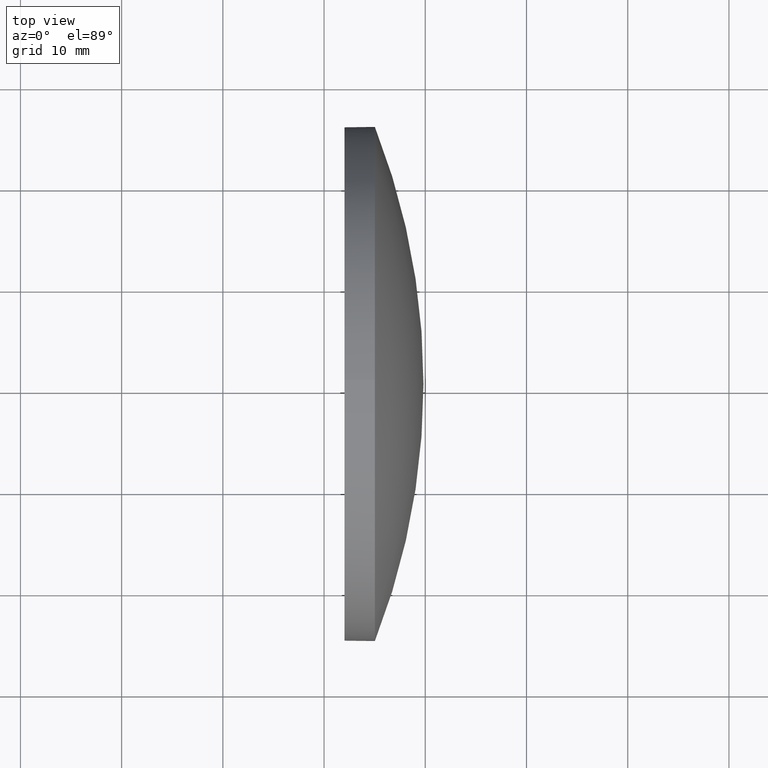
[diagram: clean part render]
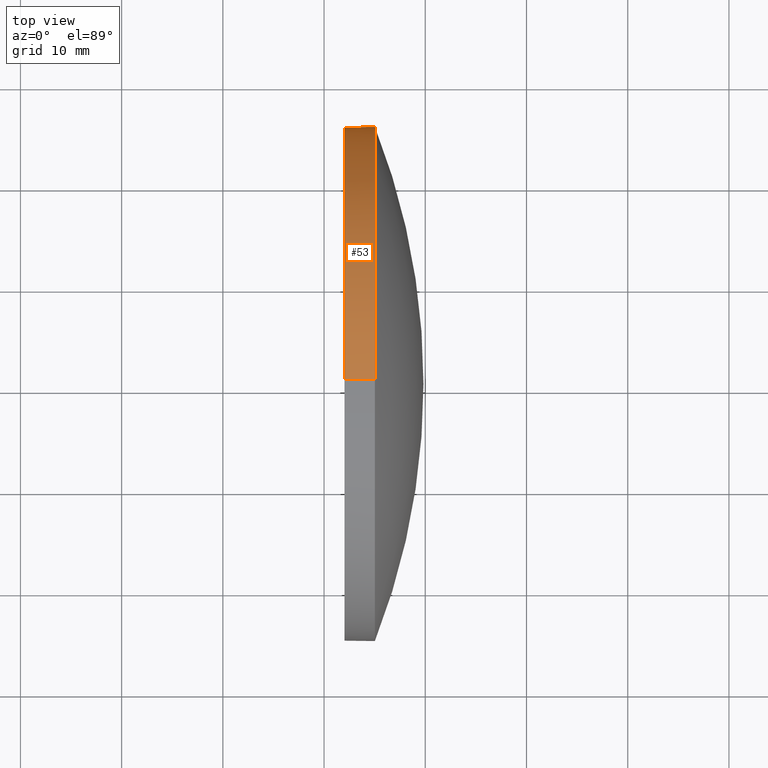
[diagram: same view with one face highlighted and labeled with its STEP entity id]
A machine part, top view. The second image highlights one B-rep face of the part: STEP entity #53.
In plain terms, the highlighted cylindrical surface (partial cylindrical patch) has radius 25.4 mm, axis along (-1, -0, -0).
Its self-contained STEP definition (entity closure, byte-faithful):
#2 = VERTEX_POINT ( 'NONE', #66 ) ;
#7 = CARTESIAN_POINT ( 'NONE',  ( 235.0208200792423800, 130.4671098528243900, 0.0000000000000000000 ) ) ;
#9 = CYLINDRICAL_SURFACE ( 'NONE', #105, 25.40000000000000600 ) ;
#16 = VERTEX_POINT ( 'NONE', #63 ) ;
#17 = VECTOR ( 'NONE', #120, 1000.000000000000000 ) ;
#19 = CIRCLE ( 'NONE', #182, 25.40000000000000600 ) ;
#21 = EDGE_CURVE ( 'NONE', #2, #57, #76, .T. ) ;
#23 = ORIENTED_EDGE ( 'NONE', *, *, #148, .T. ) ;
#29 = EDGE_CURVE ( 'NONE', #16, #57, #113, .T. ) ;
#35 = VECTOR ( 'NONE', #135, 1000.000000000000000 ) ;
#38 = DIRECTION ( 'NONE',  ( -1.000000000000000000, -0.0000000000000000000, -0.0000000000000000000 ) ) ;
#43 = DIRECTION ( 'NONE',  ( -1.000000000000000000, -0.0000000000000000000, -0.0000000000000000000 ) ) ;
#48 = ORIENTED_EDGE ( 'NONE', *, *, #29, .T. ) ;
#53 = ADVANCED_FACE ( 'NONE', ( #160 ), #9, .T. ) ;
#57 = VERTEX_POINT ( 'NONE', #65 ) ;
#63 = CARTESIAN_POINT ( 'NONE',  ( 235.0208200792423800, 130.4671098528243900, -25.40000000000000600 ) ) ;
#65 = CARTESIAN_POINT ( 'NONE',  ( 232.0208200792423800, 130.4671098528243900, -25.40000000000000600 ) ) ;
#66 = CARTESIAN_POINT ( 'NONE',  ( 232.0208200792423800, 130.4671098528243900, 25.40000000000000600 ) ) ;
#76 = CIRCLE ( 'NONE', #174, 25.40000000000000600 ) ;
#79 = AXIS2_PLACEMENT_3D ( 'NONE', #7, #43, #152 ) ;
#87 = CARTESIAN_POINT ( 'NONE',  ( 220.3307464569769000, 130.4671098528243900, 0.0000000000000000000 ) ) ;
#99 = VERTEX_POINT ( 'NONE', #150 ) ;
#101 = CARTESIAN_POINT ( 'NONE',  ( 232.0208200792423800, 130.4671098528243900, 0.0000000000000000000 ) ) ;
#105 = AXIS2_PLACEMENT_3D ( 'NONE', #87, #173, #185 ) ;
#113 = LINE ( 'NONE', #147, #35 ) ;
#116 = VERTEX_POINT ( 'NONE', #140 ) ;
#120 = DIRECTION ( 'NONE',  ( -1.000000000000000000, -0.0000000000000000000, -0.0000000000000000000 ) ) ;
#122 = CARTESIAN_POINT ( 'NONE',  ( 235.0208200792423800, 130.4671098528243900, 0.0000000000000000000 ) ) ;
#134 = ORIENTED_EDGE ( 'NONE', *, *, #167, .F. ) ;
#135 = DIRECTION ( 'NONE',  ( -1.000000000000000000, -0.0000000000000000000, -0.0000000000000000000 ) ) ;
#136 = CIRCLE ( 'NONE', #79, 25.40000000000000600 ) ;
#138 = ORIENTED_EDGE ( 'NONE', *, *, #21, .F. ) ;
#139 = EDGE_CURVE ( 'NONE', #116, #99, #136, .T. ) ;
#140 = CARTESIAN_POINT ( 'NONE',  ( 235.0208200792423800, 130.4671098528243900, 25.40000000000000600 ) ) ;
#142 = DIRECTION ( 'NONE',  ( 0.0000000000000000000, 0.0000000000000000000, 1.000000000000000000 ) ) ;
#147 = CARTESIAN_POINT ( 'NONE',  ( 220.3307464569769000, 130.4671098528243900, -25.40000000000000600 ) ) ;
#148 = EDGE_CURVE ( 'NONE', #99, #16, #19, .T. ) ;
#150 = CARTESIAN_POINT ( 'NONE',  ( 235.0208200792423600, 155.8671098528243700, 0.0000000000000000000 ) ) ;
#152 = DIRECTION ( 'NONE',  ( 0.0000000000000000000, 0.0000000000000000000, 1.000000000000000000 ) ) ;
#156 = ORIENTED_EDGE ( 'NONE', *, *, #139, .T. ) ;
#160 = FACE_OUTER_BOUND ( 'NONE', #162, .T. ) ;
#162 = EDGE_LOOP ( 'NONE', ( #23, #48, #138, #134, #156 ) ) ;
#163 = LINE ( 'NONE', #180, #17 ) ;
#167 = EDGE_CURVE ( 'NONE', #116, #2, #163, .T. ) ;
#173 = DIRECTION ( 'NONE',  ( -1.000000000000000000, -0.0000000000000000000, -0.0000000000000000000 ) ) ;
#174 = AXIS2_PLACEMENT_3D ( 'NONE', #101, #38, #176 ) ;
#176 = DIRECTION ( 'NONE',  ( 0.0000000000000000000, 0.0000000000000000000, 1.000000000000000000 ) ) ;
#179 = DIRECTION ( 'NONE',  ( -1.000000000000000000, -0.0000000000000000000, -0.0000000000000000000 ) ) ;
#180 = CARTESIAN_POINT ( 'NONE',  ( 220.3307464569769000, 130.4671098528243900, 25.40000000000000600 ) ) ;
#182 = AXIS2_PLACEMENT_3D ( 'NONE', #122, #179, #142 ) ;
#185 = DIRECTION ( 'NONE',  ( 0.0000000000000000000, 0.0000000000000000000, 1.000000000000000000 ) ) ;